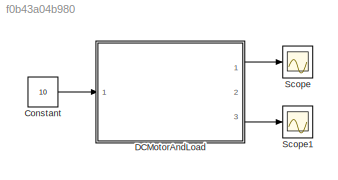
MODEL slx_f0b43a04b980
KIND model
CONFIG AbsTol = auto
CONFIG EnableMultiTasking = off
CONFIG FixedStep = auto
CONFIG MaxStep = 1e-3
CONFIG MinStep = auto
CONFIG RelTol = 1e-3
CONFIG SampleTimeConstraint = Unconstrained
CONFIG Solver = ode15s
CONFIG SolverName = ode15s
CONFIG StartTime = 0.0
CONFIG StopTime = 100
BLOCK [Constant] Constant
  Value = 10
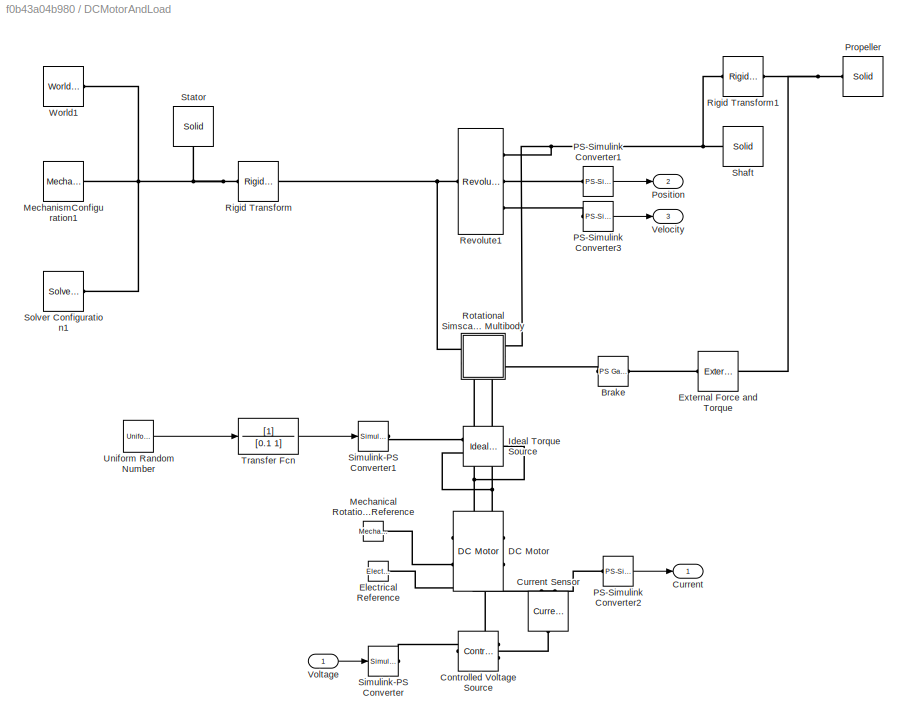
BLOCK [SubSystem] DCMotorAndLoad
  Ports = [1, 3]
  RequestExecContextInheritance = off
BLOCK [Reference] DCMotorAndLoad/Brake  REF=fl_ps_legacy_lib/Legacy Physical
Signals/Functions/PS Gain
  Ports = [0, 0, 0, 0, 0, 1, 1]
  SourceBlock = fl_ps_legacy_lib/Legacy Physical\nSignals/Functions/PS Gain
  SourceProductBaseCode = SS
  SourceType = PS Gain
BLOCK [Reference] DCMotorAndLoad/Controlled Voltage Source  REF=fl_lib/Electrical/Electrical Sources/Controlled Voltage
Source
  Ports = [0, 0, 0, 0, 0, 1, 2]
  SourceBlock = fl_lib/Electrical/Electrical Sources/Controlled Voltage\nSource
  SourceProductBaseCode = SS
  SourceType = Controlled Voltage\nSource
BLOCK [Outport] DCMotorAndLoad/Current
  VectorParamsAs1DForOutWhenUnconnected = off
BLOCK [Reference] DCMotorAndLoad/Current Sensor  REF=fl_lib/Electrical/Electrical Sensors/Current Sensor
  Ports = [0, 0, 0, 0, 0, 1, 2]
  SourceBlock = fl_lib/Electrical/Electrical Sensors/Current Sensor
  SourceProductBaseCode = SS
  SourceType = Current Sensor
BLOCK [Reference] DCMotorAndLoad/DC Motor  REF=ee_lib/Electromechanical/Brushed Motors/DC Motor
  Ports = [0, 0, 0, 0, 0, 2, 2]
  SourceBlock = ee_lib/Electromechanical/Brushed Motors/DC Motor
  SourceProductBaseCode = PS
  SourceType = DC Motor
BLOCK [Reference] DCMotorAndLoad/Electrical Reference  REF=fl_lib/Electrical/Electrical Elements/Electrical Reference
  Ports = [0, 0, 0, 0, 0, 1]
  SourceBlock = fl_lib/Electrical/Electrical Elements/Electrical Reference
  SourceProductBaseCode = SS
  SourceType = Electrical Reference
BLOCK [Reference] DCMotorAndLoad/External Force and Torque  REF=sm_lib/Forces and
Torques/External Force
and Torque
  Ports = [0, 0, 0, 0, 0, 1, 1]
  SourceBlock = sm_lib/Forces and\nTorques/External Force\nand Torque
  SourceProductBaseCode = MS
  SourceType = External Force\nand Torque
BLOCK [Reference] DCMotorAndLoad/Ideal Torque Source  REF=fl_lib/Mechanical/Mechanical Sources/Ideal Torque Source
  Ports = [0, 0, 0, 0, 0, 1, 2]
  SourceBlock = fl_lib/Mechanical/Mechanical Sources/Ideal Torque Source
  SourceProductBaseCode = SS
  SourceType = Ideal Torque Source
BLOCK [Reference] DCMotorAndLoad/Mechanical Rotational Reference  REF=fl_lib/Mechanical/Rotational Elements/Mechanical
Rotational Reference
  Ports = [0, 0, 0, 0, 0, 1]
  SourceBlock = fl_lib/Mechanical/Rotational Elements/Mechanical\nRotational Reference
  SourceProductBaseCode = SS
  SourceType = Mechanical\nRotational Reference
BLOCK [Reference] DCMotorAndLoad/MechanismConfiguration1  REF=sm_lib/Utilities/Mechanism
Configuration
  Ports = [0, 0, 0, 0, 0, 0, 1]
  SourceBlock = sm_lib/Utilities/Mechanism\nConfiguration
  SourceProductBaseCode = MS
  SourceType = Mechanism\nConfiguration
BLOCK [Reference] DCMotorAndLoad/PS-Simulink Converter1  REF=nesl_utility/PS-Simulink
Converter
  Ports = [0, 1, 0, 0, 0, 1]
  SourceBlock = nesl_utility/PS-Simulink\nConverter
  SourceProductBaseCode = SS
  SourceType = PS-Simulink\nConverter
BLOCK [Reference] DCMotorAndLoad/PS-Simulink Converter2  REF=nesl_utility/PS-Simulink
Converter
  Ports = [0, 1, 0, 0, 0, 1]
  SourceBlock = nesl_utility/PS-Simulink\nConverter
  SourceProductBaseCode = SS
  SourceType = PS-Simulink\nConverter
BLOCK [Reference] DCMotorAndLoad/PS-Simulink Converter3  REF=nesl_utility/PS-Simulink
Converter
  Ports = [0, 1, 0, 0, 0, 1]
  SourceBlock = nesl_utility/PS-Simulink\nConverter
  SourceProductBaseCode = SS
  SourceType = PS-Simulink\nConverter
BLOCK [Outport] DCMotorAndLoad/Position
  Port = 2
  VectorParamsAs1DForOutWhenUnconnected = off
BLOCK [Reference] DCMotorAndLoad/Propeller  REF=sm_lib/Body Elements/Solid
  Ports = [0, 0, 0, 0, 0, 0, 1]
  SourceBlock = sm_lib/Body Elements/Solid
  SourceProductBaseCode = MS
  SourceType = File Solid
BLOCK [Reference] DCMotorAndLoad/Revolute1  REF=sm_lib/Joints/Revolute Joint
  Ports = [0, 0, 0, 0, 0, 1, 3]
  SourceBlock = sm_lib/Joints/Revolute Joint
  SourceProductBaseCode = MS
  SourceType = Revolute Joint
BLOCK [Reference] DCMotorAndLoad/Rigid Transform  REF=sm_lib/Frames and
Transforms/Rigid
Transform
  Ports = [0, 0, 0, 0, 0, 1, 1]
  SourceBlock = sm_lib/Frames and\nTransforms/Rigid\nTransform
  SourceProductBaseCode = MS
  SourceType = Rigid\nTransform
BLOCK [Reference] DCMotorAndLoad/Rigid Transform1  REF=sm_lib/Frames and
Transforms/Rigid
Transform
  Ports = [0, 0, 0, 0, 0, 1, 1]
  SourceBlock = sm_lib/Frames and\nTransforms/Rigid\nTransform
  SourceProductBaseCode = MS
  SourceType = Rigid\nTransform
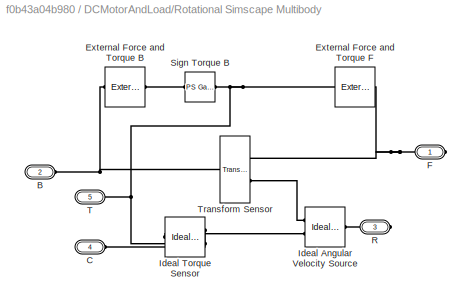
BLOCK [SubSystem] DCMotorAndLoad/Rotational Simscape Multibody
  Ports = [0, 0, 0, 0, 0, 2, 3]
  RequestExecContextInheritance = off
BLOCK [PMIOPort] DCMotorAndLoad/Rotational Simscape Multibody/B
  Port = 2
  Side = Left
BLOCK [PMIOPort] DCMotorAndLoad/Rotational Simscape Multibody/C
  Port = 4
  Side = Left
BLOCK [Reference] DCMotorAndLoad/Rotational Simscape Multibody/External Force and Torque B  REF=sm_lib/Forces and
Torques/External Force
and Torque
  Ports = [0, 0, 0, 0, 0, 1, 1]
  SourceBlock = sm_lib/Forces and\nTorques/External Force\nand Torque
  SourceProductBaseCode = MS
  SourceType = External Force\nand Torque
BLOCK [Reference] DCMotorAndLoad/Rotational Simscape Multibody/External Force and Torque F  REF=sm_lib/Forces and
Torques/External Force
and Torque
  Ports = [0, 0, 0, 0, 0, 1, 1]
  SourceBlock = sm_lib/Forces and\nTorques/External Force\nand Torque
  SourceProductBaseCode = MS
  SourceType = External Force\nand Torque
BLOCK [PMIOPort] DCMotorAndLoad/Rotational Simscape Multibody/F
  Side = Right
BLOCK [Reference] DCMotorAndLoad/Rotational Simscape Multibody/Ideal Angular Velocity Source  REF=fl_lib/Mechanical/Mechanical Sources/Ideal Angular
Velocity Source
  Ports = [0, 0, 0, 0, 0, 1, 2]
  SourceBlock = fl_lib/Mechanical/Mechanical Sources/Ideal Angular\nVelocity Source
  SourceProductBaseCode = SS
  SourceType = Ideal Angular\nVelocity Source
BLOCK [Reference] DCMotorAndLoad/Rotational Simscape Multibody/Ideal Torque Sensor  REF=fl_lib/Mechanical/Mechanical Sensors/Ideal Torque Sensor
  Ports = [0, 0, 0, 0, 0, 1, 2]
  SourceBlock = fl_lib/Mechanical/Mechanical Sensors/Ideal Torque Sensor
  SourceProductBaseCode = SS
  SourceType = Ideal Torque Sensor
BLOCK [PMIOPort] DCMotorAndLoad/Rotational Simscape Multibody/R
  Port = 3
  Side = Right
BLOCK [Reference] DCMotorAndLoad/Rotational Simscape Multibody/Sign Torque B  REF=fl_ps_legacy_lib/Legacy Physical
Signals/Functions/PS Gain
  Ports = [0, 0, 0, 0, 0, 1, 1]
  SourceBlock = fl_ps_legacy_lib/Legacy Physical\nSignals/Functions/PS Gain
  SourceProductBaseCode = SS
  SourceType = PS Gain
BLOCK [PMIOPort] DCMotorAndLoad/Rotational Simscape Multibody/T
  Port = 5
  Side = Right
BLOCK [Reference] DCMotorAndLoad/Rotational Simscape Multibody/Transform Sensor  REF=sm_lib/Frames and
Transforms/Transform
Sensor
  Ports = [0, 0, 0, 0, 0, 1, 2]
  SourceBlock = sm_lib/Frames and\nTransforms/Transform\nSensor
  SourceProductBaseCode = MS
  SourceType = Transform\nSensor
BLOCK [Reference] DCMotorAndLoad/Shaft  REF=sm_lib/Body Elements/Solid
  Ports = [0, 0, 0, 0, 0, 0, 1]
  SourceBlock = sm_lib/Body Elements/Solid
  SourceProductBaseCode = MS
  SourceType = File Solid
BLOCK [Reference] DCMotorAndLoad/Simulink-PS Converter  REF=nesl_utility/Simulink-PS
Converter
  Ports = [1, 0, 0, 0, 0, 0, 1]
  SourceBlock = nesl_utility/Simulink-PS\nConverter
  SourceProductBaseCode = SS
  SourceType = Simulink-PS\nConverter
BLOCK [Reference] DCMotorAndLoad/Simulink-PS Converter1  REF=nesl_utility/Simulink-PS
Converter
  Ports = [1, 0, 0, 0, 0, 0, 1]
  SourceBlock = nesl_utility/Simulink-PS\nConverter
  SourceProductBaseCode = SS
  SourceType = Simulink-PS\nConverter
BLOCK [Reference] DCMotorAndLoad/Solver Configuration1  REF=nesl_utility/Solver
Configuration
  Ports = [0, 0, 0, 0, 0, 0, 1]
  SourceBlock = nesl_utility/Solver\nConfiguration
  SourceProductBaseCode = SS
  SourceType = Solver\nConfiguration
BLOCK [Reference] DCMotorAndLoad/Stator  REF=sm_lib/Body Elements/Solid
  Ports = [0, 0, 0, 0, 0, 0, 1]
  SourceBlock = sm_lib/Body Elements/Solid
  SourceProductBaseCode = MS
  SourceType = File Solid
BLOCK [TransferFcn] DCMotorAndLoad/Transfer Fcn
  Denominator = [0.1 1]
BLOCK [UniformRandomNumber] DCMotorAndLoad/Uniform Random Number
  SampleTime = 0.001
BLOCK [Outport] DCMotorAndLoad/Velocity
  Port = 3
  VectorParamsAs1DForOutWhenUnconnected = off
BLOCK [Inport] DCMotorAndLoad/Voltage
BLOCK [Reference] DCMotorAndLoad/World1  REF=sm_lib/Frames and
Transforms/World Frame
  Ports = [0, 0, 0, 0, 0, 0, 1]
  SourceBlock = sm_lib/Frames and\nTransforms/World Frame
  SourceProductBaseCode = MS
  SourceType = World Frame
BLOCK [Scope] Scope
  Floating = off
  NumInputPorts = 1
  Ports = [1]
  ScopeSpecificationString = Simulink.scopes.TimeScopeBlockCfg('CurrentConfiguration', extmgr.ConfigurationSet(extmgr.Configuration('Core','General UI',true),extmgr.Configuration('Core','Source UI',true),extmgr.Configuration('Sources','WiredSimulink',true),extmgr.Configuration('Visuals','Time Domain',true,'SerializedDisplays',{struct('MinYLimReal','-0.12445','MaxYLimReal','1.12008','YLabelReal','','MinYLimMag','0.00000','MaxY...<+1407ch>
BLOCK [Scope] Scope1
  Floating = off
  NumInputPorts = 1
  Ports = [1]
  ScopeSpecificationString = Simulink.scopes.TimeScopeBlockCfg('CurrentConfiguration', extmgr.ConfigurationSet(extmgr.Configuration('Core','General UI',true),extmgr.Configuration('Core','Source UI',true),extmgr.Configuration('Sources','WiredSimulink',true,'DataLoggingVariableName','ScopeData1'),extmgr.Configuration('Visuals','Time Domain',true,'SerializedDisplays',{struct('MinYLimReal','1546.47699','MaxYLimReal','1720.54727',...<+1468ch>
LINE Constant:1 -> DCMotorAndLoad:1
LINE DCMotorAndLoad/PS-Simulink Converter1:1 -> DCMotorAndLoad/Position:1
LINE DCMotorAndLoad/PS-Simulink Converter2:1 -> DCMotorAndLoad/Current:1
LINE DCMotorAndLoad/PS-Simulink Converter3:1 -> DCMotorAndLoad/Velocity:1
LINE DCMotorAndLoad/Transfer Fcn:1 -> DCMotorAndLoad/Simulink-PS Converter1:1
LINE DCMotorAndLoad/Uniform Random Number:1 -> DCMotorAndLoad/Transfer Fcn:1
LINE DCMotorAndLoad/Voltage:1 -> DCMotorAndLoad/Simulink-PS Converter:1
LINE DCMotorAndLoad:1 -> Scope:1
LINE DCMotorAndLoad:3 -> Scope1:1
PLINE DCMotorAndLoad/Brake:LConn1 -- DCMotorAndLoad/Rotational Simscape Multibody:RConn3
PLINE DCMotorAndLoad/Brake:RConn1 -- DCMotorAndLoad/External Force and Torque:LConn1
PLINE DCMotorAndLoad/Controlled Voltage Source:LConn1 -- DCMotorAndLoad/Current Sensor:LConn1
PLINE DCMotorAndLoad/Controlled Voltage Source:RConn1 -- DCMotorAndLoad/Simulink-PS Converter:RConn1
PNET net1: DCMotorAndLoad/Controlled Voltage Source:RConn2 -- DCMotorAndLoad/DC Motor:RConn1 -- DCMotorAndLoad/Electrical Reference:LConn1
PLINE DCMotorAndLoad/Current Sensor:RConn1 -- DCMotorAndLoad/PS-Simulink Converter2:LConn1
PLINE DCMotorAndLoad/Current Sensor:RConn2 -- DCMotorAndLoad/DC Motor:LConn1
PNET net2: DCMotorAndLoad/DC Motor:LConn2 -- DCMotorAndLoad/Ideal Torque Source:LConn1 -- DCMotorAndLoad/Rotational Simscape Multibody:RConn2
PNET net3: DCMotorAndLoad/DC Motor:RConn2 -- DCMotorAndLoad/Ideal Torque Source:RConn2 -- DCMotorAndLoad/Mechanical Rotational Reference:LConn1 -- DCMotorAndLoad/Rotational Simscape Multibody:LConn2
PNET net4: DCMotorAndLoad/External Force and Torque:RConn1 -- DCMotorAndLoad/Propeller:RConn1 -- DCMotorAndLoad/Rigid Transform1:RConn1
PLINE DCMotorAndLoad/Ideal Torque Source:RConn1 -- DCMotorAndLoad/Simulink-PS Converter1:RConn1
PNET net5: DCMotorAndLoad/MechanismConfiguration1:RConn1 -- DCMotorAndLoad/Rigid Transform:LConn1 -- DCMotorAndLoad/Solver Configuration1:RConn1 -- DCMotorAndLoad/Stator:RConn1 -- DCMotorAndLoad/World1:RConn1
PLINE DCMotorAndLoad/PS-Simulink Converter1:LConn1 -- DCMotorAndLoad/Revolute1:RConn2
PLINE DCMotorAndLoad/PS-Simulink Converter3:LConn1 -- DCMotorAndLoad/Revolute1:RConn3
PNET net6: DCMotorAndLoad/Revolute1:LConn1 -- DCMotorAndLoad/Rigid Transform:RConn1 -- DCMotorAndLoad/Rotational Simscape Multibody:LConn1
PNET net7: DCMotorAndLoad/Revolute1:RConn1 -- DCMotorAndLoad/Rigid Transform1:LConn1 -- DCMotorAndLoad/Rotational Simscape Multibody:RConn1 -- DCMotorAndLoad/Shaft:RConn1
PNET net8: DCMotorAndLoad/Rotational Simscape Multibody/B:RConn1 -- DCMotorAndLoad/Rotational Simscape Multibody/External Force and Torque B:RConn1 -- DCMotorAndLoad/Rotational Simscape Multibody/Transform Sensor:LConn1
PLINE DCMotorAndLoad/Rotational Simscape Multibody/C:RConn1 -- DCMotorAndLoad/Rotational Simscape Multibody/Ideal Torque Sensor:RConn1
PLINE DCMotorAndLoad/Rotational Simscape Multibody/External Force and Torque B:LConn1 -- DCMotorAndLoad/Rotational Simscape Multibody/Sign Torque B:RConn1
PNET net9: DCMotorAndLoad/Rotational Simscape Multibody/External Force and Torque F:LConn1 -- DCMotorAndLoad/Rotational Simscape Multibody/Ideal Torque Sensor:RConn2 -- DCMotorAndLoad/Rotational Simscape Multibody/Sign Torque B:LConn1 -- DCMotorAndLoad/Rotational Simscape Multibody/T:RConn1
PNET net10: DCMotorAndLoad/Rotational Simscape Multibody/External Force and Torque F:RConn1 -- DCMotorAndLoad/Rotational Simscape Multibody/F:RConn1 -- DCMotorAndLoad/Rotational Simscape Multibody/Transform Sensor:RConn1
PLINE DCMotorAndLoad/Rotational Simscape Multibody/Ideal Angular Velocity Source:LConn1 -- DCMotorAndLoad/Rotational Simscape Multibody/R:RConn1
PLINE DCMotorAndLoad/Rotational Simscape Multibody/Ideal Angular Velocity Source:RConn1 -- DCMotorAndLoad/Rotational Simscape Multibody/Transform Sensor:RConn2
PLINE DCMotorAndLoad/Rotational Simscape Multibody/Ideal Angular Velocity Source:RConn2 -- DCMotorAndLoad/Rotational Simscape Multibody/Ideal Torque Sensor:LConn1
note: PNET lines group multi-terminal physical nets as a canonical sorted terminal list (undirected conserving connections); 2-terminal nets keep the pairwise PLINE form
